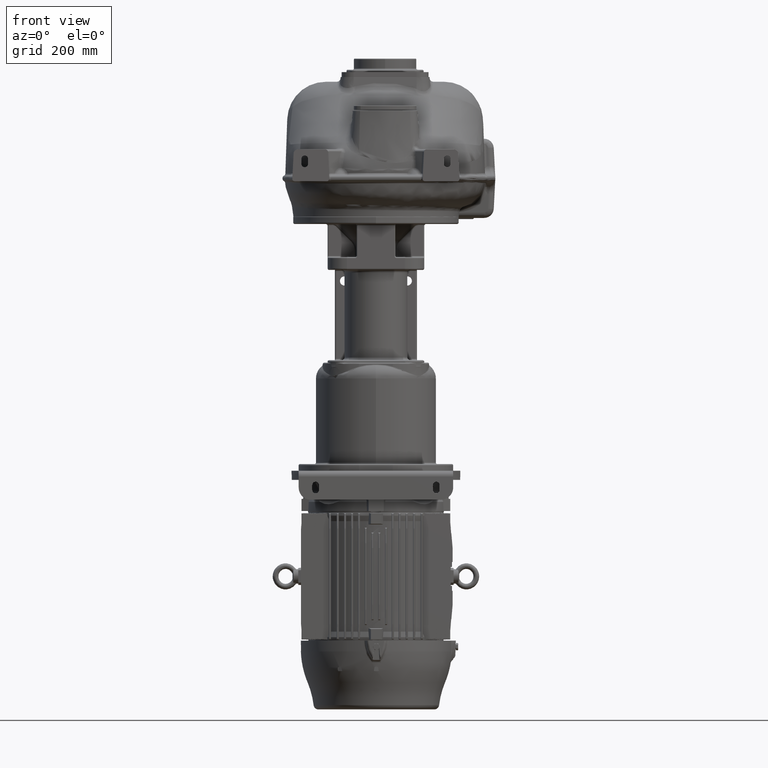
[diagram: clean part render]
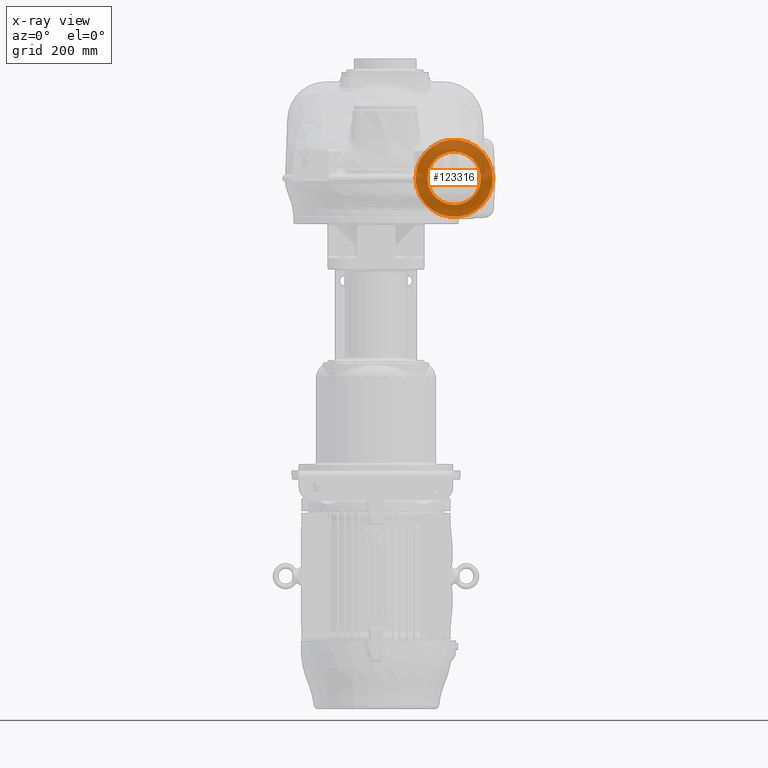
[diagram: x-ray — body ghosted, one internal face saturated and labeled with its STEP entity id]
A machine part, front view, then the same camera in x-ray: the body is ghosted and one INTERNAL B-rep face — a face not visible from any outside direction — is saturated and labeled: STEP entity #123316.
In plain terms, the highlighted planar face has unit normal (0, 1, 0).
Its self-contained STEP definition (entity closure, byte-faithful):
#122583=CARTESIAN_POINT('',(1.81E2,4.82E2,0.E0));
#122584=DIRECTION('',(0.E0,-1.E0,0.E0));
#122585=DIRECTION('',(1.E0,0.E0,0.E0));
#122586=AXIS2_PLACEMENT_3D('',#122583,#122584,#122585);
#122588=CARTESIAN_POINT('',(1.81E2,4.82E2,0.E0));
#122589=DIRECTION('',(0.E0,1.E0,0.E0));
#122590=DIRECTION('',(1.E0,0.E0,0.E0));
#122591=AXIS2_PLACEMENT_3D('',#122588,#122589,#122590);
#122593=CARTESIAN_POINT('',(1.81E2,4.82E2,0.E0));
#122594=DIRECTION('',(0.E0,1.E0,0.E0));
#122595=DIRECTION('',(0.E0,0.E0,1.E0));
#122596=AXIS2_PLACEMENT_3D('',#122593,#122594,#122595);
#122598=CARTESIAN_POINT('',(1.81E2,4.82E2,0.E0));
#122599=DIRECTION('',(0.E0,1.E0,0.E0));
#122600=DIRECTION('',(0.E0,0.E0,-1.E0));
#122601=AXIS2_PLACEMENT_3D('',#122598,#122599,#122600);
#122639=CARTESIAN_POINT('',(1.81E2,4.82E2,5.525E1));
#122640=VERTEX_POINT('',#122639);
#122643=CARTESIAN_POINT('',(1.81E2,4.82E2,-5.525E1));
#122644=VERTEX_POINT('',#122643);
#122719=CARTESIAN_POINT('',(2.61E2,4.82E2,1.776357839400E-14));
#122720=VERTEX_POINT('',#122719);
#122721=CARTESIAN_POINT('',(1.01E2,4.82E2,-2.960593732334E-14));
#122722=VERTEX_POINT('',#122721);
#123303=CARTESIAN_POINT('',(1.81E2,4.82E2,0.E0));
#123304=DIRECTION('',(0.E0,1.E0,0.E0));
#123305=DIRECTION('',(1.E0,0.E0,0.E0));
#123306=AXIS2_PLACEMENT_3D('',#123303,#123304,#123305);
#123307=PLANE('',#123306);
#123308=ORIENTED_EDGE('',*,*,#122764,.F.);
#123309=ORIENTED_EDGE('',*,*,#122908,.T.);
#123310=EDGE_LOOP('',(#123308,#123309));
#123311=FACE_OUTER_BOUND('',#123310,.F.);
#123312=ORIENTED_EDGE('',*,*,#123296,.F.);
#123313=ORIENTED_EDGE('',*,*,#123285,.F.);
#123314=EDGE_LOOP('',(#123312,#123313));
#123315=FACE_BOUND('',#123314,.F.);
#123316=ADVANCED_FACE('',(#123311,#123315),#123307,.F.);
#122587=CIRCLE('',#122586,8.E1);
#122592=CIRCLE('',#122591,8.E1);
#122597=CIRCLE('',#122596,5.525E1);
#122602=CIRCLE('',#122601,5.525E1);
#122764=EDGE_CURVE('',#122720,#122722,#122587,.T.);
#122908=EDGE_CURVE('',#122720,#122722,#122592,.T.);
#123285=EDGE_CURVE('',#122644,#122640,#122602,.T.);
#123296=EDGE_CURVE('',#122640,#122644,#122597,.T.);